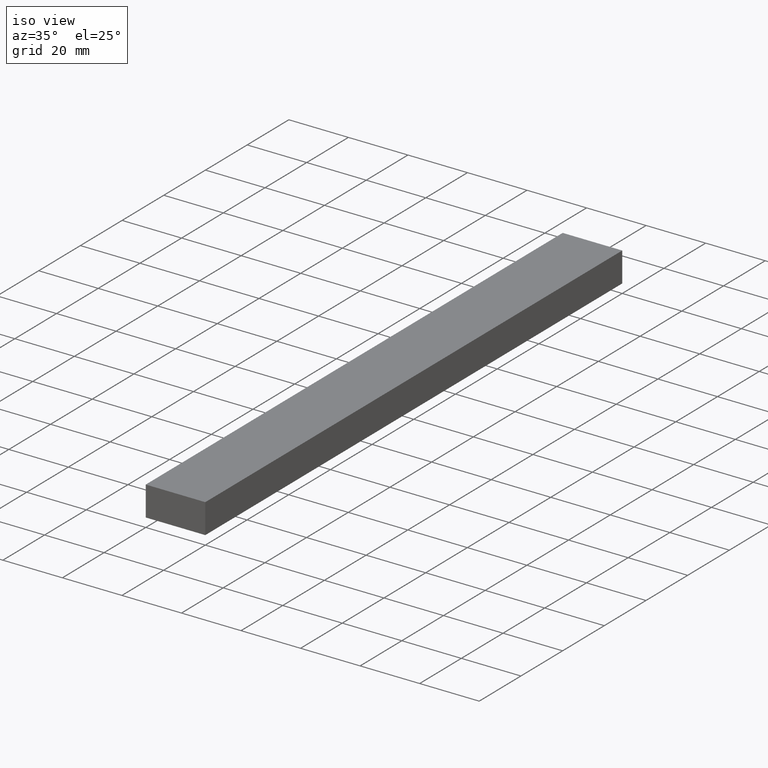
[diagram: clean part render]
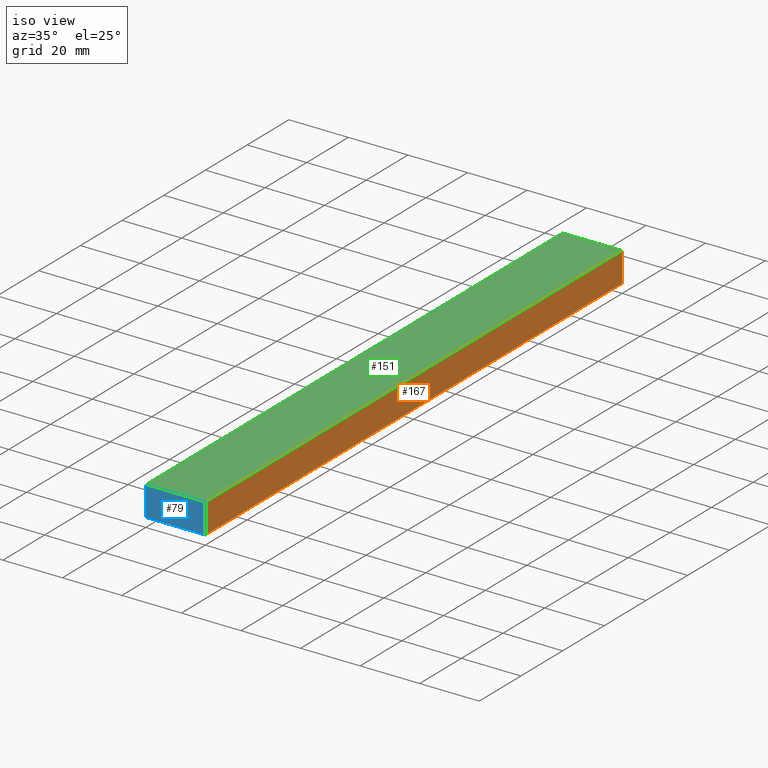
[diagram: same view with three faces highlighted in distinct colors, each labeled with its STEP entity id]
A machine part, iso view with three faces highlighted in distinct colors.
Their STEP definitions:

[orange] entity #167 — the highlighted face is a freeform B-spline surface patch.
#51=CARTESIAN_POINT('',(20.0,0.0,0.0));
#52=VERTEX_POINT('',#51);
#58=CARTESIAN_POINT('',(20.0,0.0,10.0));
#59=VERTEX_POINT('',#58);
#60=CARTESIAN_POINT('',(20.0,0.0,0.0));
#61=CARTESIAN_POINT('',(20.0,0.0,10.0));
#62=QUASI_UNIFORM_CURVE('',1,(#60,#61),.UNSPECIFIED.,.F.,.U.);
#63=EDGE_CURVE('',#52,#59,#62,.T.);
#87=CARTESIAN_POINT('',(20.0,200.0,0.0));
#88=VERTEX_POINT('',#87);
#101=CARTESIAN_POINT('',(20.0,200.0,10.0));
#102=VERTEX_POINT('',#101);
#108=CARTESIAN_POINT('',(20.0,200.0,0.0));
#109=CARTESIAN_POINT('',(20.0,200.0,10.0));
#110=QUASI_UNIFORM_CURVE('',1,(#108,#109),.UNSPECIFIED.,.F.,.U.);
#111=EDGE_CURVE('',#88,#102,#110,.T.);
#142=CARTESIAN_POINT('',(20.0,200.0,10.0));
#143=CARTESIAN_POINT('',(20.0,0.0,10.0));
#144=QUASI_UNIFORM_CURVE('',1,(#142,#143),.UNSPECIFIED.,.F.,.U.);
#145=EDGE_CURVE('',#102,#59,#144,.T.);
#152=CARTESIAN_POINT('',(20.0,-9.989999612361194,10.499499980618060));
#153=CARTESIAN_POINT('',(20.0,-9.989999612361194,-0.499500248838961));
#154=CARTESIAN_POINT('',(20.0,209.990004976779200,10.499499980618060));
#155=CARTESIAN_POINT('',(20.0,209.990004976779200,-0.499500248838961));
#156=B_SPLINE_SURFACE_WITH_KNOTS('',1,1,((#152,#154),(#153,#155)),.UNSPECIFIED.,.F.,.F.,.U.,(2,2),(2,2),(0.0,10.999000229457019),(0.0,219.980004589140410),.UNSPECIFIED.);
#157=ORIENTED_EDGE('',*,*,#63,.F.);
#158=CARTESIAN_POINT('',(20.0,200.0,0.0));
#159=CARTESIAN_POINT('',(20.0,0.0,0.0));
#160=QUASI_UNIFORM_CURVE('',1,(#158,#159),.UNSPECIFIED.,.F.,.U.);
#161=EDGE_CURVE('',#88,#52,#160,.T.);
#162=ORIENTED_EDGE('',*,*,#161,.F.);
#163=ORIENTED_EDGE('',*,*,#111,.T.);
#164=ORIENTED_EDGE('',*,*,#145,.T.);
#165=EDGE_LOOP('',(#157,#162,#163,#164));
#166=FACE_OUTER_BOUND('',#165,.T.);
#167=ADVANCED_FACE('',(#166),#156,.T.);

[blue] entity #79 — the highlighted face is a freeform B-spline surface patch.
#44=CARTESIAN_POINT('',(-0.998999961236120,0.0,10.499499980618060));
#45=CARTESIAN_POINT('',(20.999000497677919,0.0,10.499499980618060));
#46=CARTESIAN_POINT('',(-0.998999961236120,0.0,-0.499500248838961));
#47=CARTESIAN_POINT('',(20.999000497677919,0.0,-0.499500248838961));
#48=B_SPLINE_SURFACE_WITH_KNOTS('',1,1,((#44,#46),(#45,#47)),.UNSPECIFIED.,.F.,.F.,.U.,(2,2),(2,2),(0.0,21.998000458914039),(0.0,10.999000229457019),.UNSPECIFIED.);
#49=CARTESIAN_POINT('',(0.0,0.0,0.0));
#50=VERTEX_POINT('',#49);
#51=CARTESIAN_POINT('',(20.0,0.0,0.0));
#52=VERTEX_POINT('',#51);
#53=CARTESIAN_POINT('',(0.0,0.0,0.0));
#54=CARTESIAN_POINT('',(20.0,0.0,0.0));
#55=QUASI_UNIFORM_CURVE('',1,(#53,#54),.UNSPECIFIED.,.F.,.U.);
#56=EDGE_CURVE('',#50,#52,#55,.T.);
#57=ORIENTED_EDGE('',*,*,#56,.T.);
#58=CARTESIAN_POINT('',(20.0,0.0,10.0));
#59=VERTEX_POINT('',#58);
#60=CARTESIAN_POINT('',(20.0,0.0,0.0));
#61=CARTESIAN_POINT('',(20.0,0.0,10.0));
#62=QUASI_UNIFORM_CURVE('',1,(#60,#61),.UNSPECIFIED.,.F.,.U.);
#63=EDGE_CURVE('',#52,#59,#62,.T.);
#64=ORIENTED_EDGE('',*,*,#63,.T.);
#65=CARTESIAN_POINT('',(0.0,0.0,10.0));
#66=VERTEX_POINT('',#65);
#67=CARTESIAN_POINT('',(20.0,0.0,10.0));
#68=CARTESIAN_POINT('',(0.0,0.0,10.0));
#69=QUASI_UNIFORM_CURVE('',1,(#67,#68),.UNSPECIFIED.,.F.,.U.);
#70=EDGE_CURVE('',#59,#66,#69,.T.);
#71=ORIENTED_EDGE('',*,*,#70,.T.);
#72=CARTESIAN_POINT('',(0.0,0.0,10.0));
#73=CARTESIAN_POINT('',(0.0,0.0,0.0));
#74=QUASI_UNIFORM_CURVE('',1,(#72,#73),.UNSPECIFIED.,.F.,.U.);
#75=EDGE_CURVE('',#66,#50,#74,.T.);
#76=ORIENTED_EDGE('',*,*,#75,.T.);
#77=EDGE_LOOP('',(#57,#64,#71,#76));
#78=FACE_OUTER_BOUND('',#77,.T.);
#79=ADVANCED_FACE('',(#78),#48,.F.);

[green] entity #151 — the highlighted face is a freeform B-spline surface patch.
#58=CARTESIAN_POINT('',(20.0,0.0,10.0));
#59=VERTEX_POINT('',#58);
#65=CARTESIAN_POINT('',(0.0,0.0,10.0));
#66=VERTEX_POINT('',#65);
#67=CARTESIAN_POINT('',(20.0,0.0,10.0));
#68=CARTESIAN_POINT('',(0.0,0.0,10.0));
#69=QUASI_UNIFORM_CURVE('',1,(#67,#68),.UNSPECIFIED.,.F.,.U.);
#70=EDGE_CURVE('',#59,#66,#69,.T.);
#94=CARTESIAN_POINT('',(0.0,200.0,10.0));
#95=VERTEX_POINT('',#94);
#101=CARTESIAN_POINT('',(20.0,200.0,10.0));
#102=VERTEX_POINT('',#101);
#103=CARTESIAN_POINT('',(20.0,200.0,10.0));
#104=CARTESIAN_POINT('',(0.0,200.0,10.0));
#105=QUASI_UNIFORM_CURVE('',1,(#103,#104),.UNSPECIFIED.,.F.,.U.);
#106=EDGE_CURVE('',#102,#95,#105,.T.);
#122=CARTESIAN_POINT('',(0.0,200.0,10.0));
#123=CARTESIAN_POINT('',(0.0,0.0,10.0));
#124=QUASI_UNIFORM_CURVE('',1,(#122,#123),.UNSPECIFIED.,.F.,.U.);
#125=EDGE_CURVE('',#95,#66,#124,.T.);
#136=CARTESIAN_POINT('',(-0.998999961236120,-9.989999612361194,10.0));
#137=CARTESIAN_POINT('',(20.999000497677919,-9.989999612361194,10.0));
#138=CARTESIAN_POINT('',(-0.998999961236120,209.990004976779200,10.0));
#139=CARTESIAN_POINT('',(20.999000497677919,209.990004976779200,10.0));
#140=B_SPLINE_SURFACE_WITH_KNOTS('',1,1,((#136,#138),(#137,#139)),.UNSPECIFIED.,.F.,.F.,.U.,(2,2),(2,2),(0.0,21.998000458914039),(0.0,219.980004589140410),.UNSPECIFIED.);
#141=ORIENTED_EDGE('',*,*,#70,.F.);
#142=CARTESIAN_POINT('',(20.0,200.0,10.0));
#143=CARTESIAN_POINT('',(20.0,0.0,10.0));
#144=QUASI_UNIFORM_CURVE('',1,(#142,#143),.UNSPECIFIED.,.F.,.U.);
#145=EDGE_CURVE('',#102,#59,#144,.T.);
#146=ORIENTED_EDGE('',*,*,#145,.F.);
#147=ORIENTED_EDGE('',*,*,#106,.T.);
#148=ORIENTED_EDGE('',*,*,#125,.T.);
#149=EDGE_LOOP('',(#141,#146,#147,#148));
#150=FACE_OUTER_BOUND('',#149,.T.);
#151=ADVANCED_FACE('',(#150),#140,.T.);